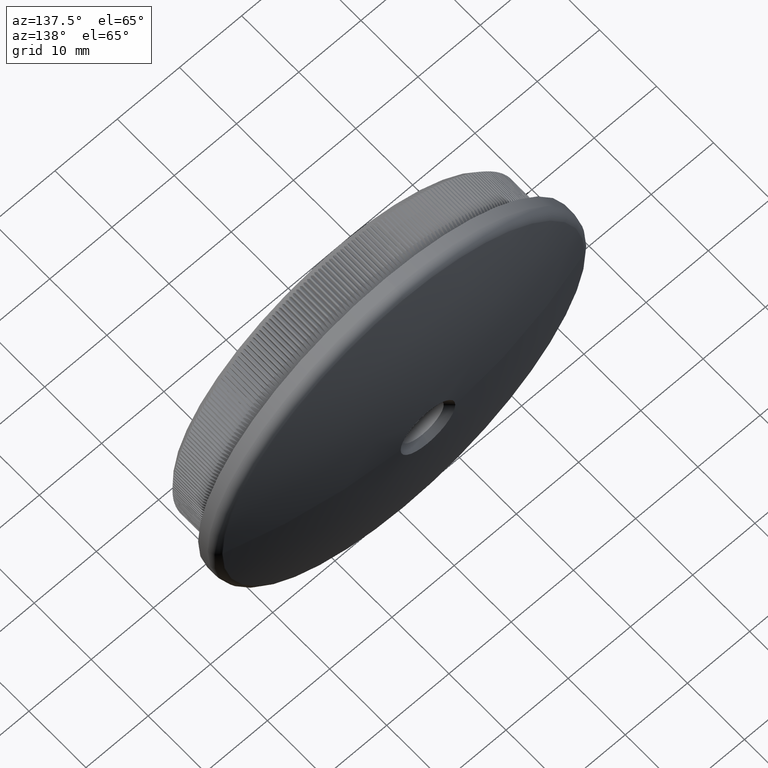
[diagram: clean part render]
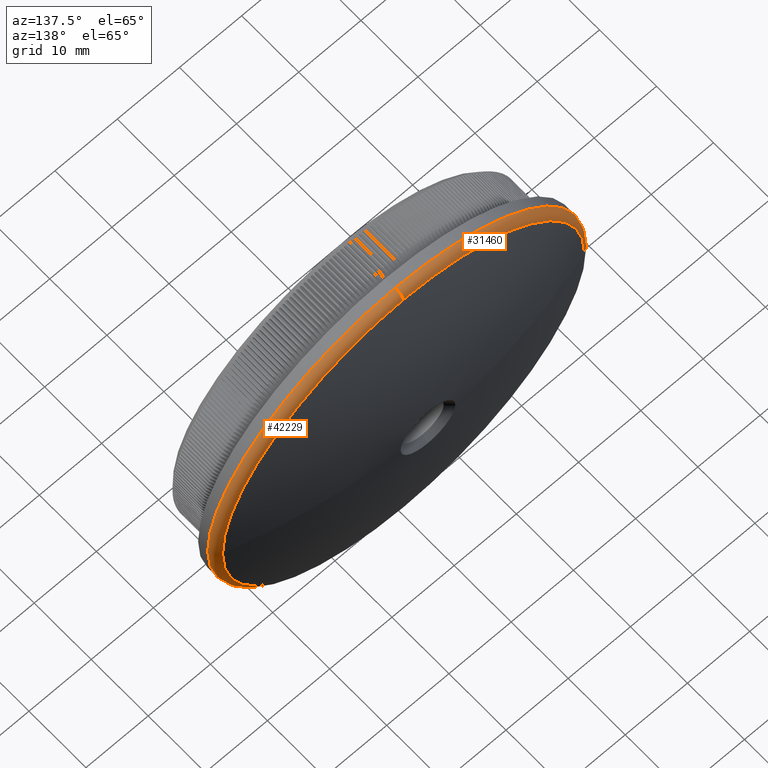
[diagram: same view with one multi-face feature highlighted, each face labeled with its STEP entity id]
A machine part, auxiliary view. The highlighted faces form ONE feature: a constant-radius fillet chain: 2 tangent blend faces with common blend radius 1.5 mm. The faces share edges in the B-rep.
Their STEP definitions:
[1] entity #42229 (Torus):
#113 = DIRECTION ( 'NONE',  ( 0.0000000000000000000, 0.0000000000000000000, -1.000000000000000000 ) ) ;
#1918 = DIRECTION ( 'NONE',  ( 0.0000000000000000000, 0.0000000000000000000, -1.000000000000000000 ) ) ;
#2478 = CIRCLE ( 'NONE', #33130, 1.500000000000001300 ) ;
#3537 = DIRECTION ( 'NONE',  ( 0.0000000000000000000, 1.000000000000000000, 0.0000000000000000000 ) ) ;
#3605 = AXIS2_PLACEMENT_3D ( 'NONE', #27180, #9181, #33951 ) ;
#4002 = DIRECTION ( 'NONE',  ( 0.0000000000000000000, 0.0000000000000000000, -1.000000000000000000 ) ) ;
#4769 = EDGE_CURVE ( 'NONE', #28328, #18710, #7181, .T. ) ;
#5177 = VERTEX_POINT ( 'NONE', #17852 ) ;
#6960 = AXIS2_PLACEMENT_3D ( 'NONE', #37858, #37702, #41233 ) ;
#7181 = CIRCLE ( 'NONE', #6960, 1.500000000000001300 ) ;
#9167 = CARTESIAN_POINT ( 'NONE',  ( 0.0000000000000000000, 9.698157620612200000, 0.0000000000000000000 ) ) ;
#9181 = DIRECTION ( 'NONE',  ( -0.0000000000000000000, -1.000000000000000000, -0.0000000000000000000 ) ) ;
#10666 = DIRECTION ( 'NONE',  ( -1.000000000000000000, 0.0000000000000000000, 0.0000000000000000000 ) ) ;
#12985 = ORIENTED_EDGE ( 'NONE', *, *, #35205, .F. ) ;
#13990 = ORIENTED_EDGE ( 'NONE', *, *, #4769, .T. ) ;
#16111 = CIRCLE ( 'NONE', #39837, 29.09052289363558300 ) ;
#16605 = FACE_OUTER_BOUND ( 'NONE', #45297, .T. ) ;
#17852 = CARTESIAN_POINT ( 'NONE',  ( 0.0000000000000000000, 9.698157620612200000, -30.14999999999999900 ) ) ;
#18710 = VERTEX_POINT ( 'NONE', #25180 ) ;
#18890 = CIRCLE ( 'NONE', #26405, 29.09052289363558300 ) ;
#19602 = VERTEX_POINT ( 'NONE', #21365 ) ;
#19814 = EDGE_CURVE ( 'NONE', #28328, #19602, #16111, .T. ) ;
#21189 = DIRECTION ( 'NONE',  ( 0.0000000000000000000, 1.000000000000000000, 0.0000000000000000000 ) ) ;
#21365 = CARTESIAN_POINT ( 'NONE',  ( 29.09052289363556200, 11.13201241806661200, 0.0000000000000000000 ) ) ;
#24633 = CARTESIAN_POINT ( 'NONE',  ( 0.0000000000000000000, 9.698157620612200000, -28.64999999999999900 ) ) ;
#25075 = CARTESIAN_POINT ( 'NONE',  ( 0.0000000000000000000, 11.13201241806661900, 0.0000000000000000000 ) ) ;
#25180 = CARTESIAN_POINT ( 'NONE',  ( 3.692310099429270400E-015, 9.698157620612200000, 30.14999999999999900 ) ) ;
#26169 = ORIENTED_EDGE ( 'NONE', *, *, #28857, .F. ) ;
#26405 = AXIS2_PLACEMENT_3D ( 'NONE', #25075, #3537, #4002 ) ;
#27017 = AXIS2_PLACEMENT_3D ( 'NONE', #9167, #33791, #1918 ) ;
#27040 = CARTESIAN_POINT ( 'NONE',  ( 3.627435837075316700E-015, 11.13201241806661900, 29.09052289363558300 ) ) ;
#27180 = CARTESIAN_POINT ( 'NONE',  ( 0.0000000000000000000, 9.698157620612200000, 0.0000000000000000000 ) ) ;
#28180 = TOROIDAL_SURFACE ( 'NONE', #27017, 28.64999999999999900, 1.500000000000000000 ) ;
#28328 = VERTEX_POINT ( 'NONE', #27040 ) ;
#28857 = EDGE_CURVE ( 'NONE', #44970, #5177, #2478, .T. ) ;
#33130 = AXIS2_PLACEMENT_3D ( 'NONE', #24633, #10666, #42329 ) ;
#33791 = DIRECTION ( 'NONE',  ( -0.0000000000000000000, -1.000000000000000000, -0.0000000000000000000 ) ) ;
#33951 = DIRECTION ( 'NONE',  ( 0.0000000000000000000, 0.0000000000000000000, -1.000000000000000000 ) ) ;
#34163 = CIRCLE ( 'NONE', #3605, 30.14999999999999900 ) ;
#35205 = EDGE_CURVE ( 'NONE', #5177, #18710, #34163, .T. ) ;
#37702 = DIRECTION ( 'NONE',  ( 1.000000000000000000, 0.0000000000000000000, -1.224646799147353500E-016 ) ) ;
#37858 = CARTESIAN_POINT ( 'NONE',  ( 3.508613079557167700E-015, 9.698157620612200000, 28.64999999999999900 ) ) ;
#39837 = AXIS2_PLACEMENT_3D ( 'NONE', #41960, #21189, #113 ) ;
#41233 = DIRECTION ( 'NONE',  ( -1.224646799147352000E-016, 0.0000000000000000000, -1.000000000000000000 ) ) ;
#41267 = EDGE_CURVE ( 'NONE', #19602, #44970, #18890, .T. ) ;
#41960 = CARTESIAN_POINT ( 'NONE',  ( 0.0000000000000000000, 11.13201241806661900, 0.0000000000000000000 ) ) ;
#42229 = ADVANCED_FACE ( 'NONE', ( #16605 ), #28180, .T. ) ;
#42329 = DIRECTION ( 'NONE',  ( 0.0000000000000000000, 0.0000000000000000000, 1.000000000000000000 ) ) ;
#43059 = CARTESIAN_POINT ( 'NONE',  ( 0.0000000000000000000, 11.13201241806661900, -29.09052289363558300 ) ) ;
#43560 = ORIENTED_EDGE ( 'NONE', *, *, #41267, .F. ) ;
#44970 = VERTEX_POINT ( 'NONE', #43059 ) ;
#45297 = EDGE_LOOP ( 'NONE', ( #45330, #13990, #12985, #26169, #43560 ) ) ;
#45330 = ORIENTED_EDGE ( 'NONE', *, *, #19814, .F. ) ;
[2] entity #31460 (Torus):
#688 = FACE_OUTER_BOUND ( 'NONE', #26752, .T. ) ;
#1100 = ORIENTED_EDGE ( 'NONE', *, *, #16667, .F. ) ;
#2300 = CIRCLE ( 'NONE', #32119, 29.09052289363558300 ) ;
#2478 = CIRCLE ( 'NONE', #33130, 1.500000000000001300 ) ;
#4524 = DIRECTION ( 'NONE',  ( 0.0000000000000000000, 0.0000000000000000000, -1.000000000000000000 ) ) ;
#4769 = EDGE_CURVE ( 'NONE', #28328, #18710, #7181, .T. ) ;
#4877 = ORIENTED_EDGE ( 'NONE', *, *, #4769, .F. ) ;
#5177 = VERTEX_POINT ( 'NONE', #17852 ) ;
#5858 = DIRECTION ( 'NONE',  ( -0.0000000000000000000, -1.000000000000000000, -0.0000000000000000000 ) ) ;
#6960 = AXIS2_PLACEMENT_3D ( 'NONE', #37858, #37702, #41233 ) ;
#7181 = CIRCLE ( 'NONE', #6960, 1.500000000000001300 ) ;
#7356 = EDGE_CURVE ( 'NONE', #18710, #5177, #17172, .T. ) ;
#8822 = VERTEX_POINT ( 'NONE', #16253 ) ;
#9824 = DIRECTION ( 'NONE',  ( 0.0000000000000000000, 0.0000000000000000000, -1.000000000000000000 ) ) ;
#10666 = DIRECTION ( 'NONE',  ( -1.000000000000000000, 0.0000000000000000000, 0.0000000000000000000 ) ) ;
#12835 = TOROIDAL_SURFACE ( 'NONE', #27696, 28.64999999999999900, 1.500000000000000000 ) ;
#14801 = ORIENTED_EDGE ( 'NONE', *, *, #28857, .T. ) ;
#16253 = CARTESIAN_POINT ( 'NONE',  ( -29.09052289363556200, 11.13201241806661200, 3.562561574721359900E-015 ) ) ;
#16363 = CIRCLE ( 'NONE', #21259, 29.09052289363558300 ) ;
#16667 = EDGE_CURVE ( 'NONE', #8822, #28328, #2300, .T. ) ;
#17126 = CARTESIAN_POINT ( 'NONE',  ( 0.0000000000000000000, 9.698157620612200000, 0.0000000000000000000 ) ) ;
#17172 = CIRCLE ( 'NONE', #41180, 30.14999999999999900 ) ;
#17852 = CARTESIAN_POINT ( 'NONE',  ( 0.0000000000000000000, 9.698157620612200000, -30.14999999999999900 ) ) ;
#18710 = VERTEX_POINT ( 'NONE', #25180 ) ;
#21259 = AXIS2_PLACEMENT_3D ( 'NONE', #24838, #35905, #28250 ) ;
#24270 = CARTESIAN_POINT ( 'NONE',  ( 0.0000000000000000000, 9.698157620612200000, 0.0000000000000000000 ) ) ;
#24633 = CARTESIAN_POINT ( 'NONE',  ( 0.0000000000000000000, 9.698157620612200000, -28.64999999999999900 ) ) ;
#24838 = CARTESIAN_POINT ( 'NONE',  ( 0.0000000000000000000, 11.13201241806661900, 0.0000000000000000000 ) ) ;
#25180 = CARTESIAN_POINT ( 'NONE',  ( 3.692310099429270400E-015, 9.698157620612200000, 30.14999999999999900 ) ) ;
#26018 = EDGE_CURVE ( 'NONE', #44970, #8822, #16363, .T. ) ;
#26540 = ORIENTED_EDGE ( 'NONE', *, *, #26018, .F. ) ;
#26752 = EDGE_LOOP ( 'NONE', ( #4877, #1100, #26540, #14801, #34796 ) ) ;
#27040 = CARTESIAN_POINT ( 'NONE',  ( 3.627435837075316700E-015, 11.13201241806661900, 29.09052289363558300 ) ) ;
#27696 = AXIS2_PLACEMENT_3D ( 'NONE', #17126, #5858, #30495 ) ;
#28250 = DIRECTION ( 'NONE',  ( 0.0000000000000000000, 0.0000000000000000000, -1.000000000000000000 ) ) ;
#28328 = VERTEX_POINT ( 'NONE', #27040 ) ;
#28857 = EDGE_CURVE ( 'NONE', #44970, #5177, #2478, .T. ) ;
#29452 = CARTESIAN_POINT ( 'NONE',  ( 0.0000000000000000000, 11.13201241806661900, 0.0000000000000000000 ) ) ;
#30495 = DIRECTION ( 'NONE',  ( 0.0000000000000000000, 0.0000000000000000000, -1.000000000000000000 ) ) ;
#31460 = ADVANCED_FACE ( 'NONE', ( #688 ), #12835, .T. ) ;
#32119 = AXIS2_PLACEMENT_3D ( 'NONE', #29452, #39317, #4524 ) ;
#33130 = AXIS2_PLACEMENT_3D ( 'NONE', #24633, #10666, #42329 ) ;
#34796 = ORIENTED_EDGE ( 'NONE', *, *, #7356, .F. ) ;
#35905 = DIRECTION ( 'NONE',  ( 0.0000000000000000000, 1.000000000000000000, 0.0000000000000000000 ) ) ;
#37702 = DIRECTION ( 'NONE',  ( 1.000000000000000000, 0.0000000000000000000, -1.224646799147353500E-016 ) ) ;
#37858 = CARTESIAN_POINT ( 'NONE',  ( 3.508613079557167700E-015, 9.698157620612200000, 28.64999999999999900 ) ) ;
#39317 = DIRECTION ( 'NONE',  ( 0.0000000000000000000, 1.000000000000000000, 0.0000000000000000000 ) ) ;
#41180 = AXIS2_PLACEMENT_3D ( 'NONE', #24270, #44732, #9824 ) ;
#41233 = DIRECTION ( 'NONE',  ( -1.224646799147352000E-016, 0.0000000000000000000, -1.000000000000000000 ) ) ;
#42329 = DIRECTION ( 'NONE',  ( 0.0000000000000000000, 0.0000000000000000000, 1.000000000000000000 ) ) ;
#43059 = CARTESIAN_POINT ( 'NONE',  ( 0.0000000000000000000, 11.13201241806661900, -29.09052289363558300 ) ) ;
#44732 = DIRECTION ( 'NONE',  ( -0.0000000000000000000, -1.000000000000000000, -0.0000000000000000000 ) ) ;
#44970 = VERTEX_POINT ( 'NONE', #43059 ) ;